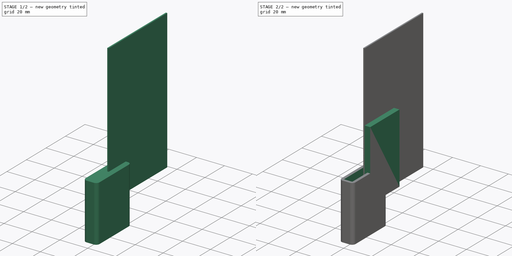
[diagram: build sequence overview — one tinted view per stage of 2, left to right]
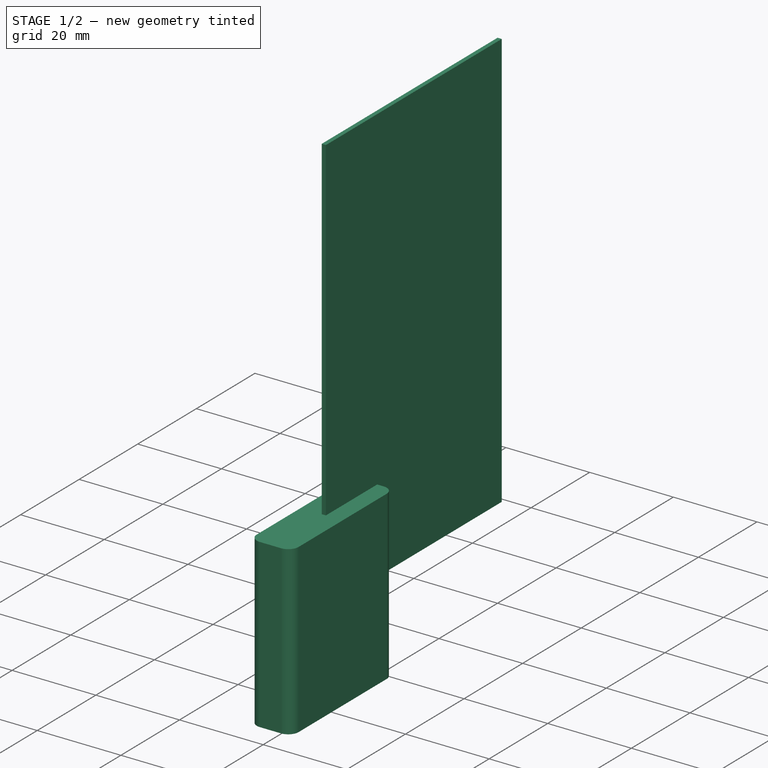
[diagram: stage 1 of 2 — iso view after this stage's code; geometry added in this stage tinted green]
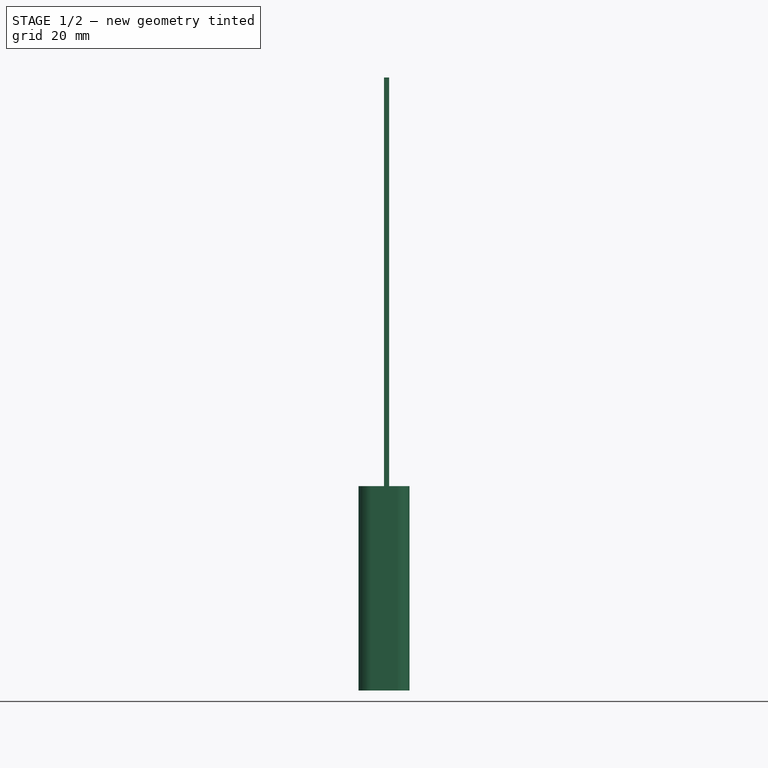
[diagram: stage 1 of 2 — front view after this stage's code; geometry added in this stage tinted green]
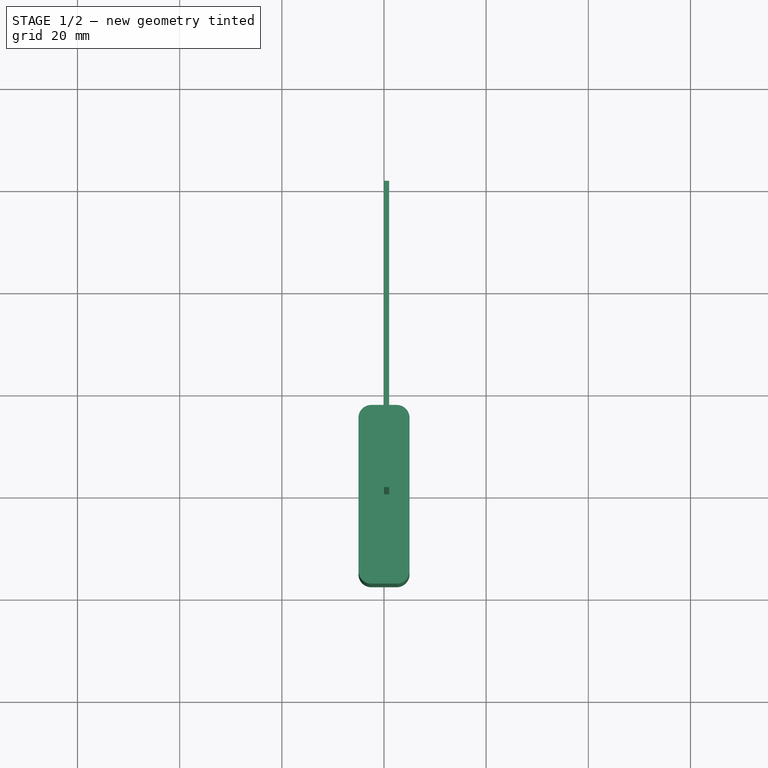
[diagram: stage 1 of 2 — top view after this stage's code; geometry added in this stage tinted green]
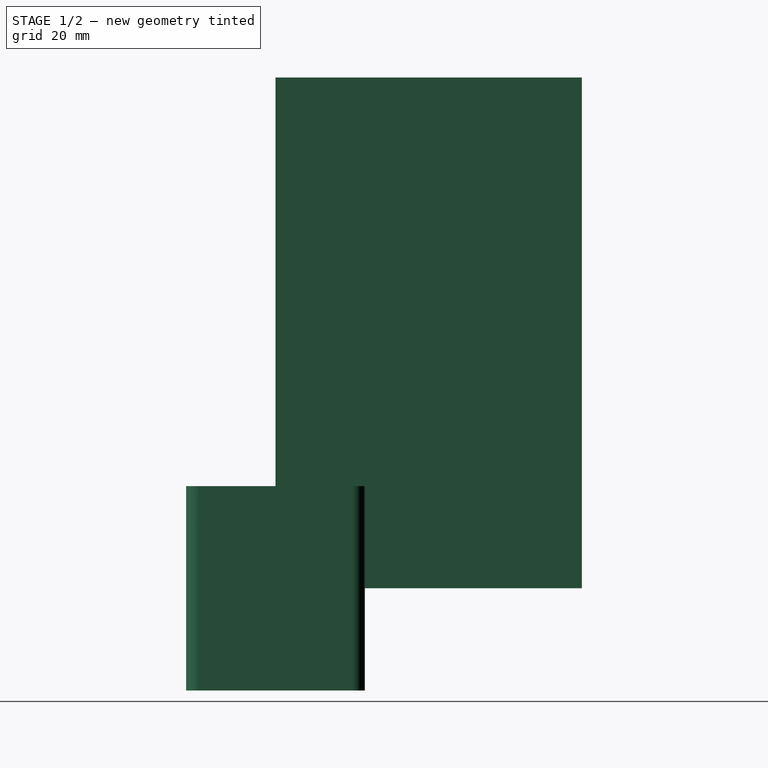
[diagram: stage 1 of 2 — right view after this stage's code; geometry added in this stage tinted green]
FCSTD DOCUMENT  (FreeCAD 0.20R)
Label: coil
License: All rights reserved
LicenseURL: http://en.wikipedia.org/wiki/All_rights_reserved
objects: PartDesign::Body×3, PartDesign::AdditiveBox×2, Sketcher::SketchObject×2, PartDesign::Pad×1, PartDesign::Pocket×1
note: 13 computed .brp shape members not serialized (recipe doc carries the construction recipe); baked Part::Feature solids carry a one-line shape summary decoded from their .brp

FEATURE [PartDesign::Body] Body  label="Core"
  Group = -> [Box]
  Origin = -> Origin
  Placement = pos=(-2.5,-15,-25) rot=(0,0,1;0rad)
  Tip = -> Box
FEATURE [Sketcher::SketchObject] Sketch
  AttachmentOffset = pos=(0,0,-20) rot=(0,0,1;0rad)
  FullyConstrained = true
  MapMode = 5
  Placement = pos=(0,0,-20) rot=(0,0,1;0rad)
  Support = -> [XY_Plane001]
  sketch-geometry (8):
    g0: ArcOfCircle CenterX=2.5 CenterY=15 CenterZ=0 NormalX=0 NormalY=0 NormalZ=1 AngleXU=0 Radius=2.5 StartAngle=3.0302e-12 EndAngle=1.5708
    g1: ArcOfCircle CenterX=2.5 CenterY=-15 CenterZ=0 NormalX=0 NormalY=0 NormalZ=1 AngleXU=0 Radius=2.5 StartAngle=4.71239 EndAngle=6.28319
    g2: ArcOfCircle CenterX=-2.5 CenterY=-15 CenterZ=0 NormalX=0 NormalY=0 NormalZ=1 AngleXU=0 Radius=2.5 StartAngle=3.14159 EndAngle=4.71239
    g3: ArcOfCircle CenterX=-2.5 CenterY=15 CenterZ=0 NormalX=0 NormalY=0 NormalZ=1 AngleXU=0 Radius=2.5 StartAngle=1.5708 EndAngle=3.14159
    g4: LineSegment StartX=-2.5 StartY=17.5 StartZ=0 EndX=2.5 EndY=17.5 EndZ=0
    g5: LineSegment StartX=5 StartY=15 StartZ=0 EndX=5 EndY=-15 EndZ=0
    g6: LineSegment StartX=2.5 StartY=-17.5 StartZ=0 EndX=-2.5 EndY=-17.5 EndZ=0
    g7: LineSegment StartX=-5 StartY=-15 StartZ=0 EndX=-5 EndY=15 EndZ=0
  constraints (18):
    c: Radius(g3) = 2.5
    c: DistanceX(g4,g4) = 5
    c: DistanceY(g7,g7) = 30
    c: Tangent(g7,g3) = 1.5708
    c: Tangent(g7,g2) = 1.5708
    c: Tangent(g4,g3) = 1.5708
    c: Tangent(g4,g0) = 1.5708
    c: Tangent(g5,g0) = 1.5708
    c: Tangent(g5,g1) = 1.5708
    c: Tangent(g6,g1) = 1.5708
    c: Tangent(g6,g2) = 1.5708
    c: Equal(g4,g6)
    c: Equal(g7,g5)
    c: Horizontal(g4)
    c: Vertical(g7)
    c: Vertical(g5)
    c: Symmetric(g2,g1,g-2)
    c: Symmetric(g0,g1,g-1)
FEATURE [PartDesign::Pad] Pad
  Direction = (0,0,1)
  Length = 40
  Length2 = 10
  Profile = -> Sketch
  ReferenceAxis = -> Sketch [N_Axis]
  Type = 0
FEATURE [PartDesign::Body] Body001  label="Coil"
  Group = -> [Sketch,Pad,Sketch001,Pocket]
  Origin = -> Origin001
  Tip = -> Pocket
FEATURE [PartDesign::AdditiveBox] Box001
  AttacherType = Attacher::AttachEngine3D
  Height = 100
  Length = 1
  MapMode = 1
  Width = 60
FEATURE [PartDesign::Body] Body002  label="Metal Plate"
  Group = -> [Box001]
  Origin = -> Origin002
  Placement = pos=(20,-30,-50) rot=(0,0,1;0rad)
  Tip = -> Box001
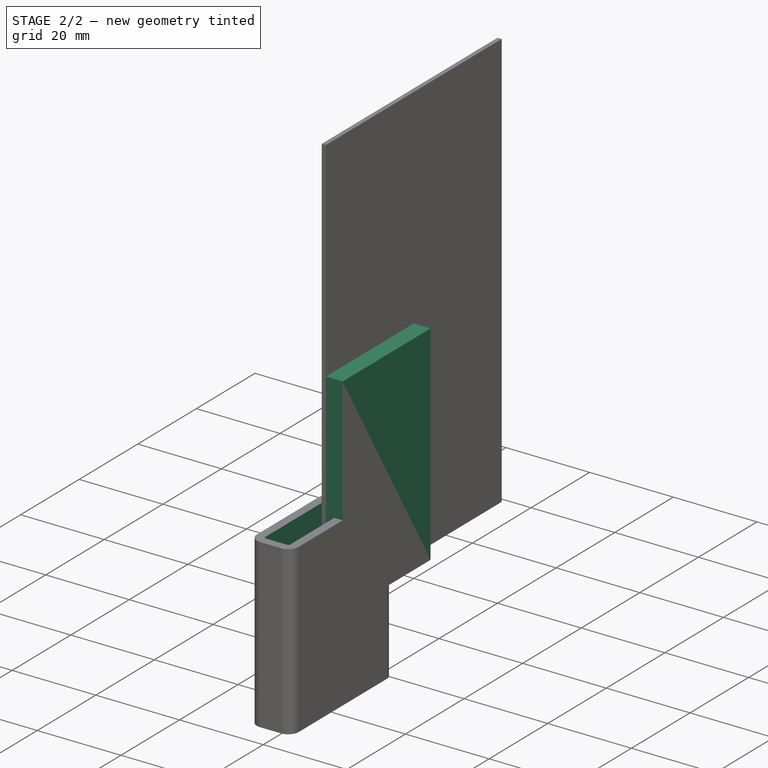
[diagram: stage 2 of 2 — iso view after this stage's code; geometry added in this stage tinted green]
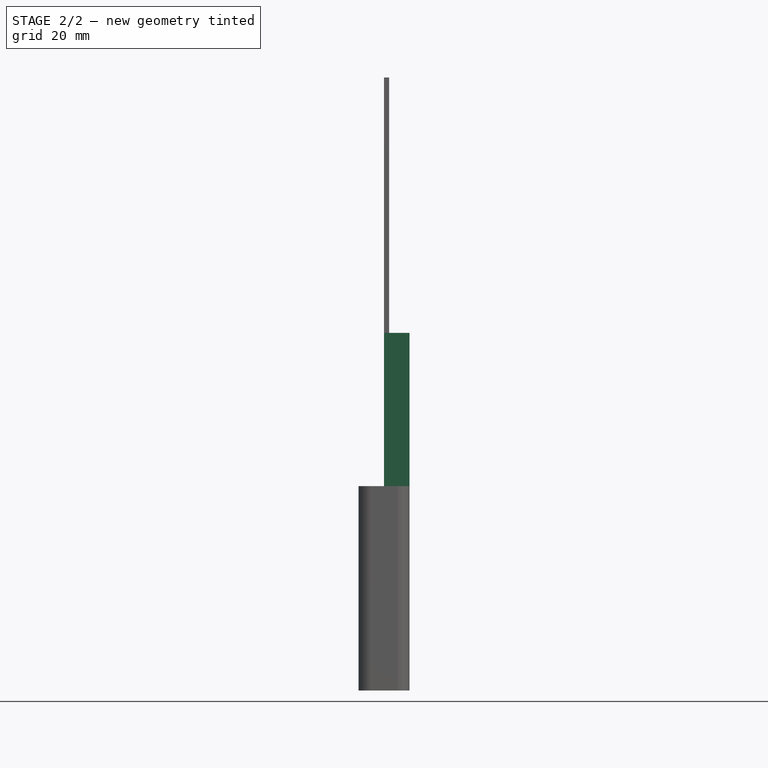
[diagram: stage 2 of 2 — front view after this stage's code; geometry added in this stage tinted green]
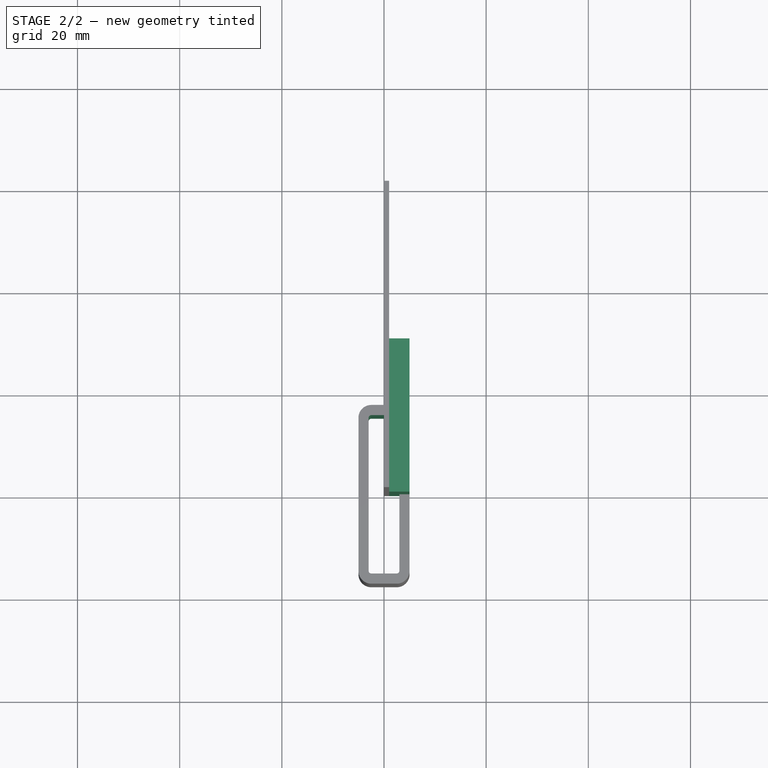
[diagram: stage 2 of 2 — top view after this stage's code; geometry added in this stage tinted green]
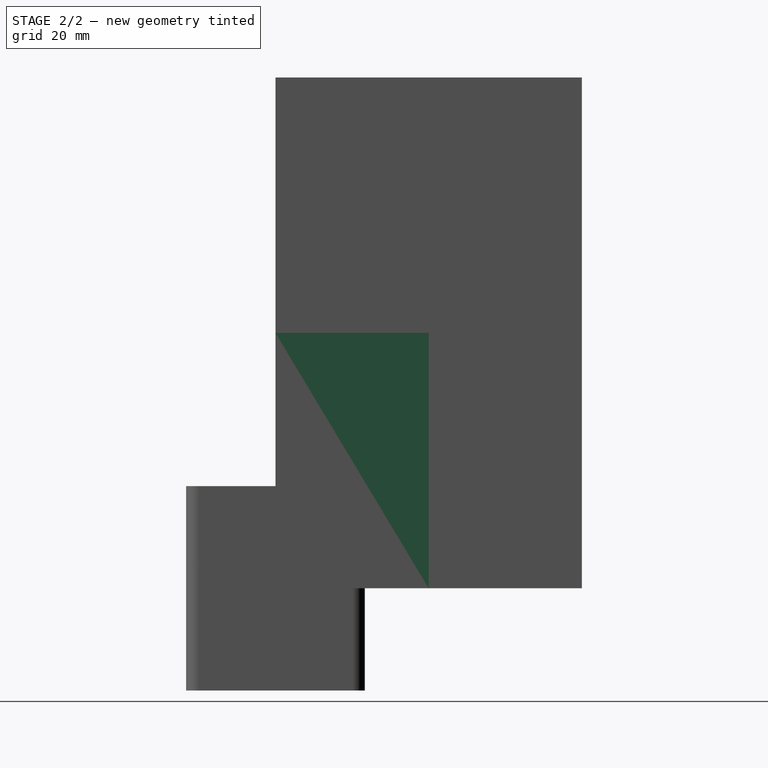
[diagram: stage 2 of 2 — right view after this stage's code; geometry added in this stage tinted green]
FEATURE [PartDesign::AdditiveBox] Box
  AttacherType = Attacher::AttachEngine3D
  Height = 50
  Length = 5
  MapMode = 1
  Width = 30
FEATURE [Sketcher::SketchObject] Sketch001
  ExternalGeometry = -> [Pad]
  FullyConstrained = true
  MapMode = 5
  Placement = pos=(0,0,-20) rot=(1,0,0;3.14159rad)
  Support = -> [Pad]
  sketch-geometry (8):
    g0: ArcOfCircle CenterX=-2.5 CenterY=15 CenterZ=0 NormalX=0 NormalY=0 NormalZ=1 AngleXU=0 Radius=0.5 StartAngle=1.5708 EndAngle=3.14159
    g1: ArcOfCircle CenterX=2.5 CenterY=15 CenterZ=0 NormalX=0 NormalY=0 NormalZ=1 AngleXU=0 Radius=0.5 StartAngle=1.49385e-11 EndAngle=1.5708
    g2: ArcOfCircle CenterX=2.5 CenterY=-15 CenterZ=0 NormalX=0 NormalY=0 NormalZ=1 AngleXU=0 Radius=0.5 StartAngle=4.71239 EndAngle=6.28319
    g3: ArcOfCircle CenterX=-2.5 CenterY=-15 CenterZ=0 NormalX=0 NormalY=0 NormalZ=1 AngleXU=0 Radius=0.5 StartAngle=3.14159 EndAngle=4.71239
    g4: LineSegment StartX=-2.5 StartY=15.5 StartZ=0 EndX=2.5 EndY=15.5 EndZ=0
    g5: LineSegment StartX=3 StartY=15 StartZ=0 EndX=3 EndY=-15 EndZ=0
    g6: LineSegment StartX=2.5 StartY=-15.5 StartZ=0 EndX=-2.5 EndY=-15.5 EndZ=0
    g7: LineSegment StartX=-3 StartY=-15 StartZ=0 EndX=-3 EndY=15 EndZ=0
  constraints (24):
    c: Coincident(g0,g-9)
    c: Coincident(g1,g-3)
    c: Coincident(g2,g-5)
    c: Coincident(g3,g-7)
    c: Coincident(g4,g0)
    c: Coincident(g4,g1)
    c: Coincident(g5,g1)
    c: Coincident(g5,g2)
    c: Vertical(g5)
    c: Coincident(g6,g2)
    c: Coincident(g6,g3)
    c: Coincident(g7,g3)
    c: Coincident(g7,g0)
    c: Vertical(g7)
    c: Horizontal(g-9,g0)
    c: Vertical(g1,g-10)
    c: Horizontal(g1,g-4)
    c: Vertical(g2,g-6)
    c: Horizontal(g6)
    c: Equal(g7,g5)
    c: Equal(g4,g6)
    c: DistanceX(g-9,g0) = 2
    c: Vertical(g0,g-10)
    c: Horizontal(g2,g-5)
FEATURE [PartDesign::Pocket] Pocket
  BaseFeature = -> Pad
  Direction = (0,0,1)
  Length = 40
  Length2 = 5
  Profile = -> Sketch001
  ReferenceAxis = -> Sketch001 [N_Axis]
  Type = 0
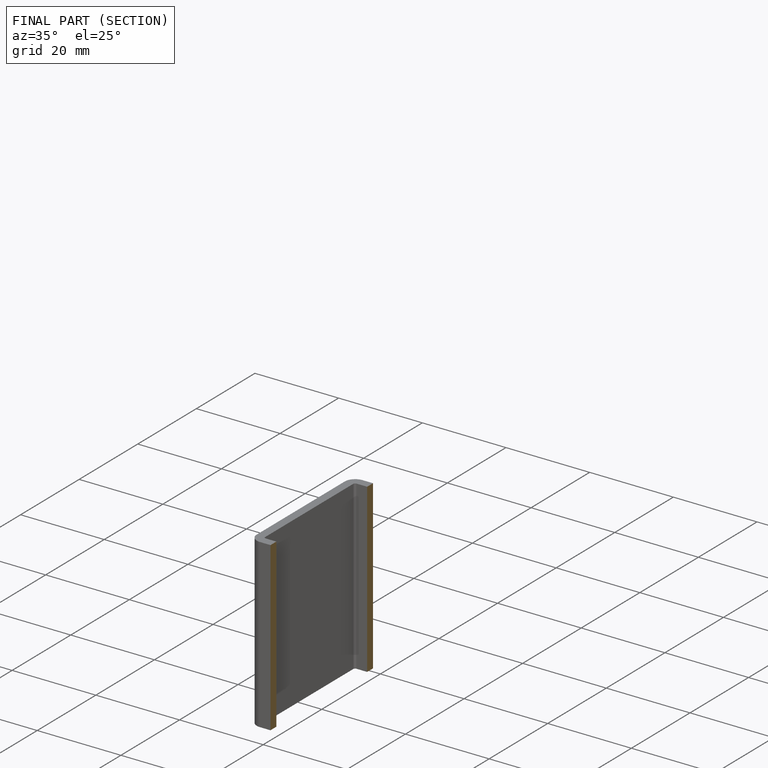
[diagram: finished part — half-section view (interior)]
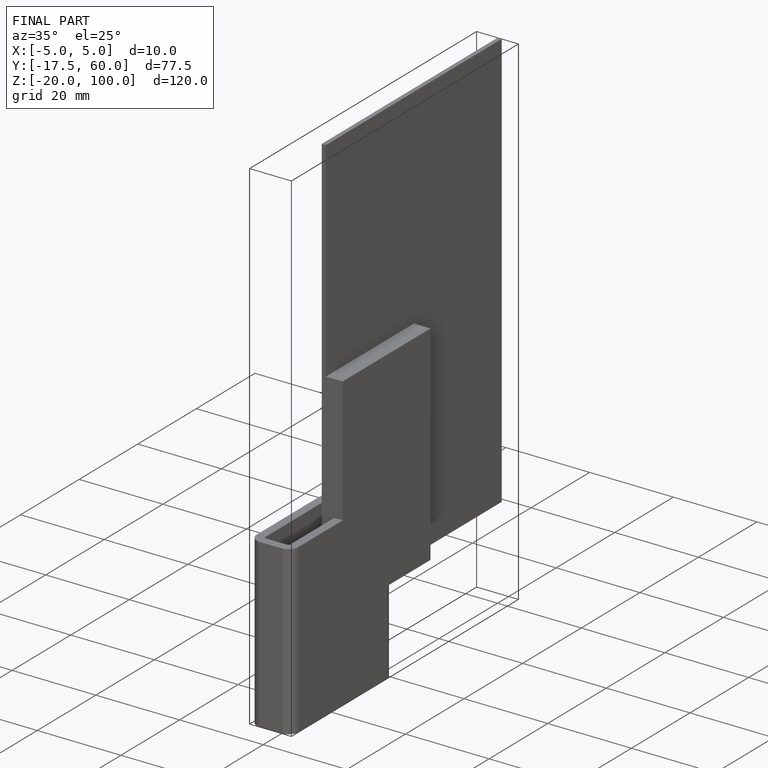
[diagram: finished part — iso view with bounding-box wireframe]
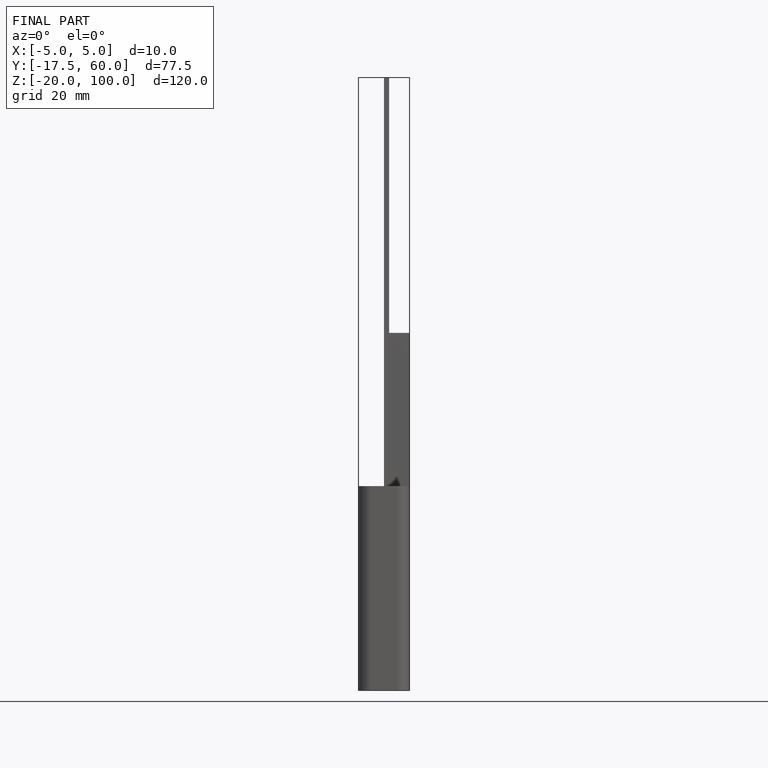
[diagram: finished part — front view with bounding-box wireframe]
